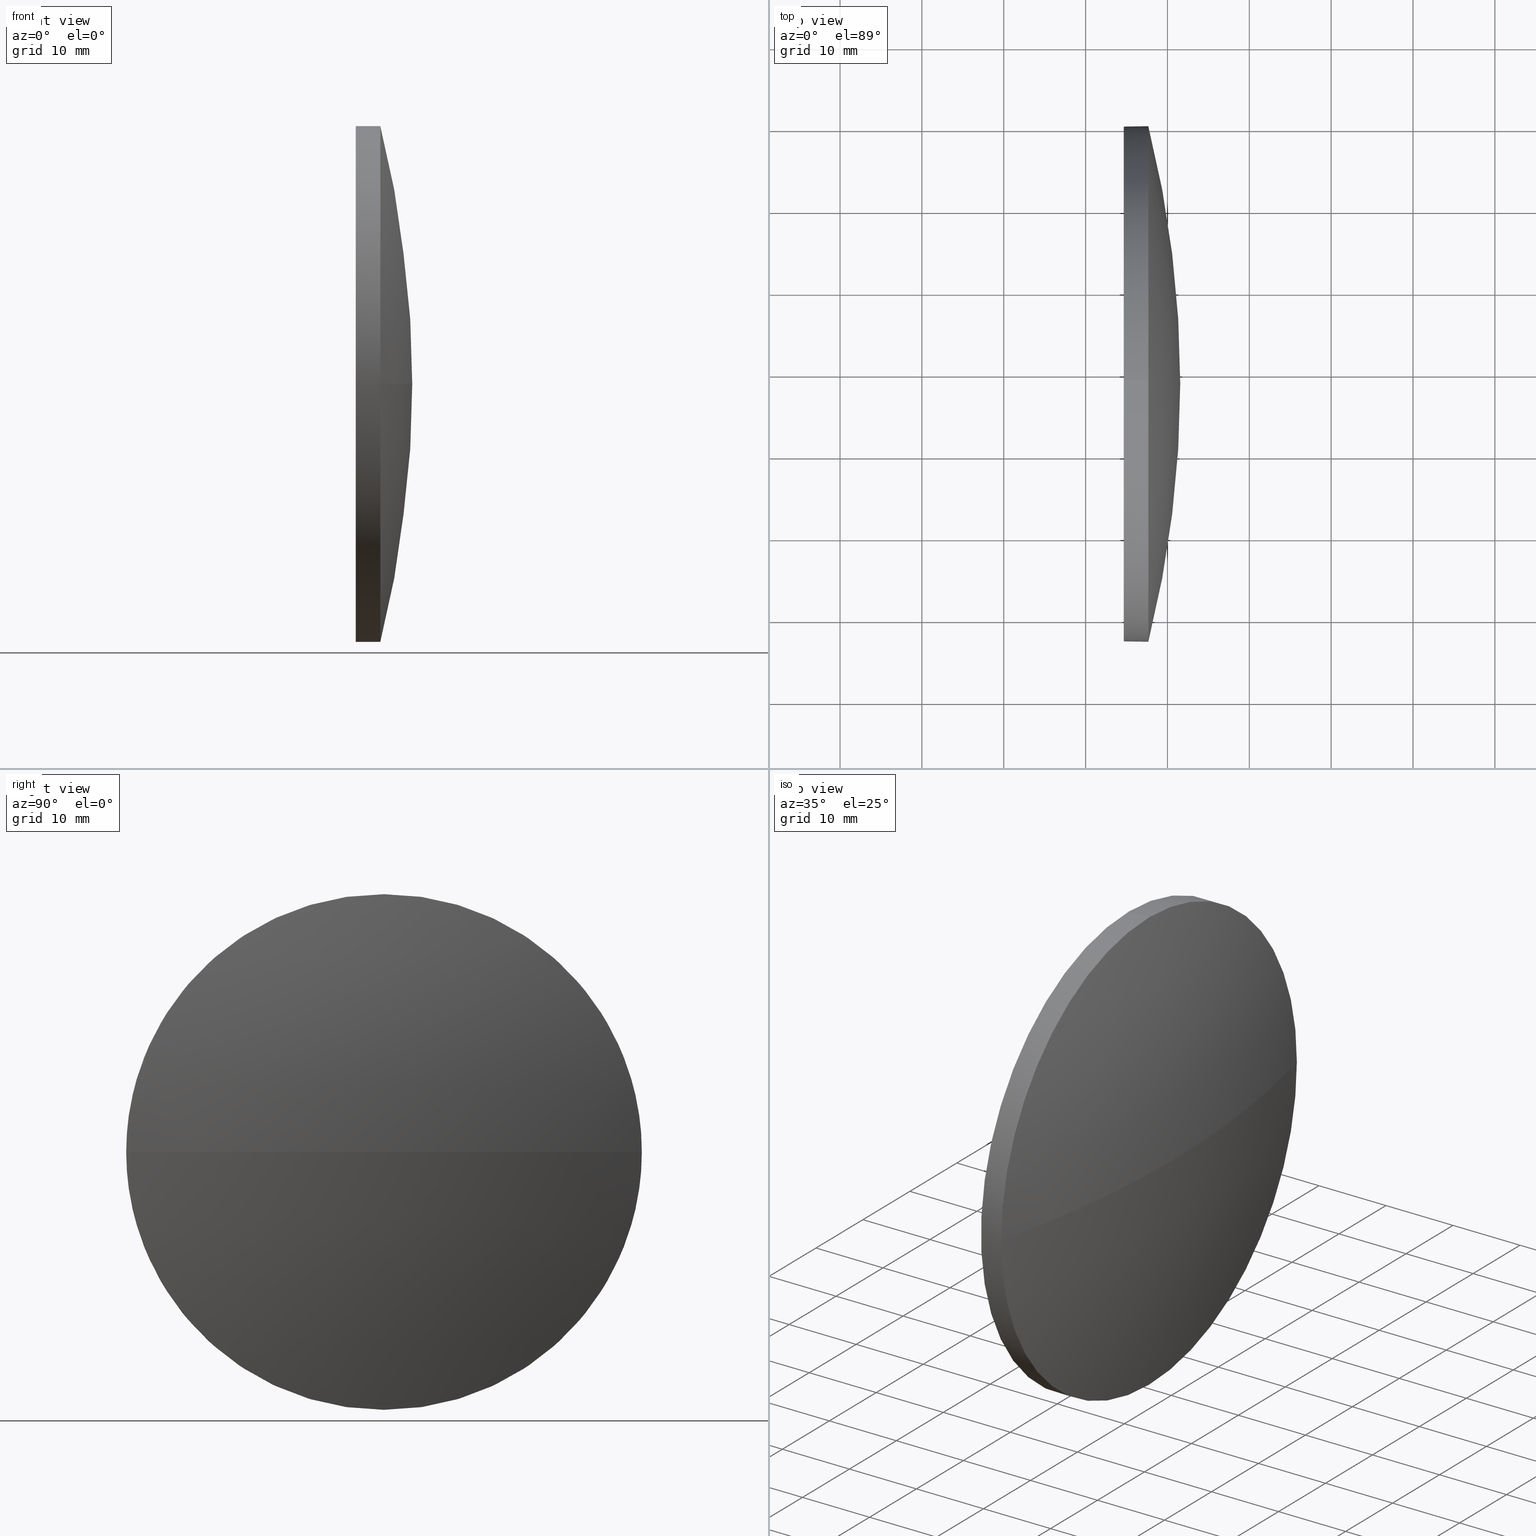
[diagram: canonical four-view strip — front | top / right | iso, engineering-drawing reading convention]
A machine part, canonical four-view strip (front | top / right | iso — engineering-drawing reading convention). The complete STEP part file that produces these views, byte-faithful:
ISO-10303-21;
HEADER;
FILE_DESCRIPTION (( 'STEP AP214' ),
    '1' );
FILE_NAME ('100075.STEP',
    '2019-05-06T04:04:16',
    ( '' ),
    ( '' ),
    'SwSTEP 2.0',
    'SolidWorks 2016',
    '' );
FILE_SCHEMA (( 'AUTOMOTIVE_DESIGN' ));
ENDSEC;

DATA;
#1 = CYLINDRICAL_SURFACE ( 'NONE', #87, 31.50000000000000700 ) ;
#2 = CARTESIAN_POINT ( 'NONE',  ( 384.6625470284427600, 48.58872453449601600, -31.50000000000000700 ) ) ;
#3 = VERTEX_POINT ( 'NONE', #52 ) ;
#4 = DIRECTION ( 'NONE',  ( 0.0000000000000000000, 0.0000000000000000000, 1.000000000000000000 ) ) ;
#5 = CARTESIAN_POINT ( 'NONE',  ( 262.4010085669045800, 48.58872453449594500, 0.0000000000000000000 ) ) ;
#6 = ORIENTED_EDGE ( 'NONE', *, *, #19, .F. ) ;
#7 = APPLICATION_PROTOCOL_DEFINITION ( 'draft international standard', 'automotive_design', 1998, #31 ) ;
#8 = AXIS2_PLACEMENT_3D ( 'NONE', #103, #106, #4 ) ;
#9 = ORIENTED_EDGE ( 'NONE', *, *, #67, .T. ) ;
#10 = DIRECTION ( 'NONE',  ( -1.000000000000000000, -0.0000000000000000000, -0.0000000000000000000 ) ) ;
#11 = DIRECTION ( 'NONE',  ( 0.0000000000000000000, 0.0000000000000000000, 1.000000000000000000 ) ) ;
#12 = CARTESIAN_POINT ( 'NONE',  ( 384.6625470284427600, 48.58872453449600900, 0.0000000000000000000 ) ) ;
#13 = ORIENTED_EDGE ( 'NONE', *, *, #72, .F. ) ;
#14 = CARTESIAN_POINT ( 'NONE',  ( 262.4010085669045800, 48.58872453449594500, 0.0000000000000000000 ) ) ;
#15 = DIRECTION ( 'NONE',  ( -1.000000000000000000, -0.0000000000000000000, -0.0000000000000000000 ) ) ;
#16 = DIRECTION ( 'NONE',  ( 0.0000000000000000000, 1.000000000000000000, 0.0000000000000000000 ) ) ;
#17 = CIRCLE ( 'NONE', #159, 31.50000000000000700 ) ;
#18 = DIRECTION ( 'NONE',  ( 1.000000000000000000, 0.0000000000000000000, 0.0000000000000000000 ) ) ;
#19 = EDGE_CURVE ( 'NONE', #33, #3, #97, .T. ) ;
#20 = ORIENTED_EDGE ( 'NONE', *, *, #34, .F. ) ;
#21 = VECTOR ( 'NONE', #176, 1000.000000000000000 ) ;
#22 = CARTESIAN_POINT ( 'NONE',  ( 391.5625470284427400, 48.58872453449595200, 0.0000000000000000000 ) ) ;
#23 = SHAPE_DEFINITION_REPRESENTATION ( #84, #139 ) ;
#24 =( NAMED_UNIT ( * ) SI_UNIT ( $, .STERADIAN. ) SOLID_ANGLE_UNIT ( ) );
#25 = CARTESIAN_POINT ( 'NONE',  ( 384.6625470284427600, 48.58872453449600900, 31.50000000000000700 ) ) ;
#26 = DIRECTION ( 'NONE',  ( 0.0000000000000000000, 0.0000000000000000000, 1.000000000000000000 ) ) ;
#27 = EDGE_LOOP ( 'NONE', ( #153, #9, #68, #20 ) ) ;
#28 =( NAMED_UNIT ( * ) PLANE_ANGLE_UNIT ( ) SI_UNIT ( $, .RADIAN. ) );
#29 = PRODUCT_RELATED_PRODUCT_CATEGORY ( 'part', '', ( #127 ) ) ;
#30 = EDGE_LOOP ( 'NONE', ( #55, #43, #109, #39, #66 ) ) ;
#31 = APPLICATION_CONTEXT ( 'automotive_design' ) ;
#32 = PRODUCT_DEFINITION_CONTEXT ( 'detailed design', #31, 'design' ) ;
#33 = VERTEX_POINT ( 'NONE', #163 ) ;
#34 = EDGE_CURVE ( 'NONE', #79, #95, #125, .T. ) ;
#35 = SURFACE_STYLE_FILL_AREA ( #104 ) ;
#36 = ORIENTED_EDGE ( 'NONE', *, *, #67, .F. ) ;
#37 = SPHERICAL_SURFACE ( 'NONE', #94, 129.1615384615381900 ) ;
#38 = CARTESIAN_POINT ( 'NONE',  ( 387.6625470284427600, 17.08872453449603100, -3.857637417314152400E-015 ) ) ;
#39 = ORIENTED_EDGE ( 'NONE', *, *, #72, .T. ) ;
#40 = CARTESIAN_POINT ( 'NONE',  ( 387.6625470284427600, 48.58872453449600900, 0.0000000000000000000 ) ) ;
#41 = EDGE_CURVE ( 'NONE', #186, #86, #110, .T. ) ;
#42 = DIRECTION ( 'NONE',  ( 0.0000000000000000000, 0.0000000000000000000, 1.000000000000000000 ) ) ;
#43 = ORIENTED_EDGE ( 'NONE', *, *, #134, .T. ) ;
#44 = CARTESIAN_POINT ( 'NONE',  ( 387.6625470284427600, 48.58872453449600900, 31.50000000000000700 ) ) ;
#45 = CARTESIAN_POINT ( 'NONE',  ( 384.6625470284427600, 48.58872453449600900, 0.0000000000000000000 ) ) ;
#46 = LINE ( 'NONE', #57, #81 ) ;
#47 = DIRECTION ( 'NONE',  ( 0.0000000000000000000, 0.0000000000000000000, 1.000000000000000000 ) ) ;
#48 = EDGE_LOOP ( 'NONE', ( #36, #58, #105, #6 ) ) ;
#49 = PRESENTATION_LAYER_ASSIGNMENT (  '', '', ( #145 ) ) ;
#50 = AXIS2_PLACEMENT_3D ( 'NONE', #45, #150, #74 ) ;
#51 = DIRECTION ( 'NONE',  ( 0.0000000000000000000, 0.0000000000000000000, 1.000000000000000000 ) ) ;
#52 = CARTESIAN_POINT ( 'NONE',  ( 387.6625470284427600, 48.58872453449601600, -31.50000000000000700 ) ) ;
#53 = UNCERTAINTY_MEASURE_WITH_UNIT (LENGTH_MEASURE( 1.000000000000000100E-005 ), #132, 'distance_accuracy_value', 'NONE');
#54 = DIRECTION ( 'NONE',  ( 0.0000000000000000000, 1.000000000000000000, 1.224646799147353200E-016 ) ) ;
#55 = ORIENTED_EDGE ( 'NONE', *, *, #148, .F. ) ;
#56 = DIRECTION ( 'NONE',  ( 0.0000000000000000000, 0.0000000000000000000, 1.000000000000000000 ) ) ;
#57 = CARTESIAN_POINT ( 'NONE',  ( 365.6235919666203200, 48.58872453449601600, -31.50000000000000700 ) ) ;
#58 = ORIENTED_EDGE ( 'NONE', *, *, #62, .T. ) ;
#59 = DIRECTION ( 'NONE',  ( -1.000000000000000000, -0.0000000000000000000, -0.0000000000000000000 ) ) ;
#60 = AXIS2_PLACEMENT_3D ( 'NONE', #115, #47, #18 ) ;
#61 = EDGE_LOOP ( 'NONE', ( #101, #78, #136, #13, #170 ) ) ;
#62 = EDGE_CURVE ( 'NONE', #70, #79, #76, .T. ) ;
#63 = LINE ( 'NONE', #71, #21 ) ;
#64 = AXIS2_PLACEMENT_3D ( 'NONE', #98, #144, #123 ) ;
#65 = PRESENTATION_STYLE_ASSIGNMENT (( #117 ) ) ;
#66 = ORIENTED_EDGE ( 'NONE', *, *, #158, .F. ) ;
#67 = EDGE_CURVE ( 'NONE', #70, #33, #161, .T. ) ;
#68 = ORIENTED_EDGE ( 'NONE', *, *, #137, .F. ) ;
#69 =( GEOMETRIC_REPRESENTATION_CONTEXT ( 3 ) GLOBAL_UNCERTAINTY_ASSIGNED_CONTEXT ( ( #82 ) ) GLOBAL_UNIT_ASSIGNED_CONTEXT ( ( #180, #28, #131 ) ) REPRESENTATION_CONTEXT ( 'NONE', 'WORKASPACE' ) );
#70 = VERTEX_POINT ( 'NONE', #22 ) ;
#71 = CARTESIAN_POINT ( 'NONE',  ( 365.6235919666203200, 48.58872453449600900, 31.50000000000000700 ) ) ;
#72 = EDGE_CURVE ( 'NONE', #95, #186, #63, .T. ) ;
#73 = APPLICATION_PROTOCOL_DEFINITION ( 'draft international standard', 'automotive_design', 1998, #151 ) ;
#74 = DIRECTION ( 'NONE',  ( 0.0000000000000000000, 0.0000000000000000000, -1.000000000000000000 ) ) ;
#75 = CARTESIAN_POINT ( 'NONE',  ( 384.6625470284427600, 48.58872453449600900, 0.0000000000000000000 ) ) ;
#76 = CIRCLE ( 'NONE', #171, 129.1615384615381900 ) ;
#77 = DIRECTION ( 'NONE',  ( 0.0000000000000000000, 0.0000000000000000000, 1.000000000000000000 ) ) ;
#78 = ORIENTED_EDGE ( 'NONE', *, *, #148, .T. ) ;
#79 = VERTEX_POINT ( 'NONE', #38 ) ;
#80 = AXIS2_PLACEMENT_3D ( 'NONE', #175, #99, #182 ) ;
#81 = VECTOR ( 'NONE', #177, 1000.000000000000000 ) ;
#82 = UNCERTAINTY_MEASURE_WITH_UNIT (LENGTH_MEASURE( 1.000000000000000100E-005 ), #180, 'distance_accuracy_value', 'NONE');
#83 = AXIS2_PLACEMENT_3D ( 'NONE', #12, #162, #11 ) ;
#84 = PRODUCT_DEFINITION_SHAPE ( 'NONE', 'NONE',  #100 ) ;
#85 = SURFACE_SIDE_STYLE ('',( #172 ) ) ;
#86 = VERTEX_POINT ( 'NONE', #2 ) ;
#87 = AXIS2_PLACEMENT_3D ( 'NONE', #128, #59, #56 ) ;
#88 = DIRECTION ( 'NONE',  ( -0.0000000000000000000, 0.0000000000000000000, -1.000000000000000000 ) ) ;
#89 = FILL_AREA_STYLE ('',( #126 ) ) ;
#90 = CYLINDRICAL_SURFACE ( 'NONE', #8, 31.50000000000000700 ) ;
#91 = MECHANICAL_DESIGN_GEOMETRIC_PRESENTATION_REPRESENTATION (  '', ( #142 ), #169 ) ;
#92 = PRODUCT_CONTEXT ( 'NONE', #151, 'mechanical' ) ;
#93 = ADVANCED_FACE ( 'NONE', ( #141 ), #1, .T. ) ;
#94 = AXIS2_PLACEMENT_3D ( 'NONE', #14, #167, #178 ) ;
#95 = VERTEX_POINT ( 'NONE', #44 ) ;
#96 = MECHANICAL_DESIGN_GEOMETRIC_PRESENTATION_REPRESENTATION (  '', ( #145 ), #143 ) ;
#97 = CIRCLE ( 'NONE', #64, 31.50000000000000700 ) ;
#98 = CARTESIAN_POINT ( 'NONE',  ( 387.6625470284427600, 48.58872453449600900, 0.0000000000000000000 ) ) ;
#99 = DIRECTION ( 'NONE',  ( -0.0000000000000000000, 0.0000000000000000000, 1.000000000000000000 ) ) ;
#100 = PRODUCT_DEFINITION ( 'δ֪', '', #154, #32 ) ;
#101 = ORIENTED_EDGE ( 'NONE', *, *, #19, .T. ) ;
#102 = MANIFOLD_SOLID_BREP ( '��ת1', #112 ) ;
#103 = CARTESIAN_POINT ( 'NONE',  ( 365.6235919666203200, 48.58872453449600900, 0.0000000000000000000 ) ) ;
#104 = FILL_AREA_STYLE ('',( #107 ) ) ;
#105 = ORIENTED_EDGE ( 'NONE', *, *, #134, .F. ) ;
#106 = DIRECTION ( 'NONE',  ( -1.000000000000000000, -0.0000000000000000000, -0.0000000000000000000 ) ) ;
#107 = FILL_AREA_STYLE_COLOUR ( '', #114 ) ;
#108 = ADVANCED_FACE ( 'NONE', ( #138 ), #90, .T. ) ;
#109 = ORIENTED_EDGE ( 'NONE', *, *, #34, .T. ) ;
#110 = CIRCLE ( 'NONE', #83, 31.50000000000000700 ) ;
#111 = DIRECTION ( 'NONE',  ( 0.0000000000000000000, 1.224646799147353200E-016, -1.000000000000000000 ) ) ;
#112 = CLOSED_SHELL ( 'NONE', ( #93, #173, #155, #108, #140 ) ) ;
#113 = CARTESIAN_POINT ( 'NONE',  ( 387.6625470284427600, 48.58872453449600900, 0.0000000000000000000 ) ) ;
#114 = COLOUR_RGB ( '',1.000000000000000000, 1.000000000000000000, 1.000000000000000000 ) ;
#115 = CARTESIAN_POINT ( 'NONE',  ( 0.0000000000000000000, 0.0000000000000000000, 0.0000000000000000000 ) ) ;
#116 = AXIS2_PLACEMENT_3D ( 'NONE', #118, #164, #42 ) ;
#117 = SURFACE_STYLE_USAGE ( .BOTH. , #85 ) ;
#118 = CARTESIAN_POINT ( 'NONE',  ( 387.6625470284427600, 48.58872453449600900, 0.0000000000000000000 ) ) ;
#119 = FACE_OUTER_BOUND ( 'NONE', #27, .T. ) ;
#120 = AXIS2_PLACEMENT_3D ( 'NONE', #5, #88, #16 ) ;
#121 = AXIS2_PLACEMENT_3D ( 'NONE', #40, #10, #51 ) ;
#122 = CIRCLE ( 'NONE', #179, 31.50000000000000700 ) ;
#123 = DIRECTION ( 'NONE',  ( 0.0000000000000000000, 0.0000000000000000000, 1.000000000000000000 ) ) ;
#124 =( LENGTH_UNIT ( ) NAMED_UNIT ( * ) SI_UNIT ( .MILLI., .METRE. ) );
#125 = CIRCLE ( 'NONE', #121, 31.50000000000000700 ) ;
#126 = FILL_AREA_STYLE_COLOUR ( '', #181 ) ;
#127 = PRODUCT ( '100075', '100075', '', ( #92 ) ) ;
#128 = CARTESIAN_POINT ( 'NONE',  ( 365.6235919666203200, 48.58872453449600900, 0.0000000000000000000 ) ) ;
#129 = DIRECTION ( 'NONE',  ( -1.000000000000000000, -0.0000000000000000000, -0.0000000000000000000 ) ) ;
#130 = PRESENTATION_LAYER_ASSIGNMENT (  '', '', ( #142 ) ) ;
#131 =( NAMED_UNIT ( * ) SI_UNIT ( $, .STERADIAN. ) SOLID_ANGLE_UNIT ( ) );
#132 =( LENGTH_UNIT ( ) NAMED_UNIT ( * ) SI_UNIT ( .MILLI., .METRE. ) );
#133 = SURFACE_SIDE_STYLE ('',( #35 ) ) ;
#134 = EDGE_CURVE ( 'NONE', #3, #79, #185, .T. ) ;
#135 =( NAMED_UNIT ( * ) PLANE_ANGLE_UNIT ( ) SI_UNIT ( $, .RADIAN. ) );
#136 = ORIENTED_EDGE ( 'NONE', *, *, #41, .F. ) ;
#137 = EDGE_CURVE ( 'NONE', #95, #33, #122, .T. ) ;
#138 = FACE_OUTER_BOUND ( 'NONE', #30, .T. ) ;
#139 = ADVANCED_BREP_SHAPE_REPRESENTATION ( '100075', ( #102, #60 ), #69 ) ;
#140 = ADVANCED_FACE ( 'NONE', ( #174 ), #165, .F. ) ;
#141 = FACE_OUTER_BOUND ( 'NONE', #61, .T. ) ;
#142 = STYLED_ITEM ( 'NONE', ( #156 ), #139 ) ;
#143 =( GEOMETRIC_REPRESENTATION_CONTEXT ( 3 ) GLOBAL_UNCERTAINTY_ASSIGNED_CONTEXT ( ( #149 ) ) GLOBAL_UNIT_ASSIGNED_CONTEXT ( ( #124, #147, #24 ) ) REPRESENTATION_CONTEXT ( 'NONE', 'WORKASPACE' ) );
#144 = DIRECTION ( 'NONE',  ( -1.000000000000000000, -0.0000000000000000000, -0.0000000000000000000 ) ) ;
#145 = STYLED_ITEM ( 'NONE', ( #65 ), #102 ) ;
#146 = CARTESIAN_POINT ( 'NONE',  ( 262.4010085669045800, 48.58872453449594500, 0.0000000000000000000 ) ) ;
#147 =( NAMED_UNIT ( * ) PLANE_ANGLE_UNIT ( ) SI_UNIT ( $, .RADIAN. ) );
#148 = EDGE_CURVE ( 'NONE', #3, #86, #46, .T. ) ;
#149 = UNCERTAINTY_MEASURE_WITH_UNIT (LENGTH_MEASURE( 1.000000000000000100E-005 ), #124, 'distance_accuracy_value', 'NONE');
#150 = DIRECTION ( 'NONE',  ( 1.000000000000000000, 0.0000000000000000000, 0.0000000000000000000 ) ) ;
#151 = APPLICATION_CONTEXT ( 'automotive_design' ) ;
#152 = SPHERICAL_SURFACE ( 'NONE', #120, 129.1615384615381900 ) ;
#153 = ORIENTED_EDGE ( 'NONE', *, *, #62, .F. ) ;
#154 = PRODUCT_DEFINITION_FORMATION_WITH_SPECIFIED_SOURCE ( '�κ�', '', #127, .NOT_KNOWN. ) ;
#155 = ADVANCED_FACE ( 'NONE', ( #119 ), #152, .T. ) ;
#156 = PRESENTATION_STYLE_ASSIGNMENT (( #168 ) ) ;
#157 = EDGE_LOOP ( 'NONE', ( #166, #183 ) ) ;
#158 = EDGE_CURVE ( 'NONE', #86, #186, #17, .T. ) ;
#159 = AXIS2_PLACEMENT_3D ( 'NONE', #75, #15, #77 ) ;
#160 = FACE_OUTER_BOUND ( 'NONE', #48, .T. ) ;
#161 = CIRCLE ( 'NONE', #80, 129.1615384615381600 ) ;
#162 = DIRECTION ( 'NONE',  ( -1.000000000000000000, -0.0000000000000000000, -0.0000000000000000000 ) ) ;
#163 = CARTESIAN_POINT ( 'NONE',  ( 387.6625470284427600, 80.08872453449592400, 0.0000000000000000000 ) ) ;
#164 = DIRECTION ( 'NONE',  ( -1.000000000000000000, -0.0000000000000000000, -0.0000000000000000000 ) ) ;
#165 = PLANE ( 'NONE',  #50 ) ;
#166 = ORIENTED_EDGE ( 'NONE', *, *, #41, .T. ) ;
#167 = DIRECTION ( 'NONE',  ( -0.0000000000000000000, 0.0000000000000000000, -1.000000000000000000 ) ) ;
#168 = SURFACE_STYLE_USAGE ( .BOTH. , #133 ) ;
#169 =( GEOMETRIC_REPRESENTATION_CONTEXT ( 3 ) GLOBAL_UNCERTAINTY_ASSIGNED_CONTEXT ( ( #53 ) ) GLOBAL_UNIT_ASSIGNED_CONTEXT ( ( #132, #135, #184 ) ) REPRESENTATION_CONTEXT ( 'NONE', 'WORKASPACE' ) );
#170 = ORIENTED_EDGE ( 'NONE', *, *, #137, .T. ) ;
#171 = AXIS2_PLACEMENT_3D ( 'NONE', #146, #111, #54 ) ;
#172 = SURFACE_STYLE_FILL_AREA ( #89 ) ;
#173 = ADVANCED_FACE ( 'NONE', ( #160 ), #37, .T. ) ;
#174 = FACE_OUTER_BOUND ( 'NONE', #157, .T. ) ;
#175 = CARTESIAN_POINT ( 'NONE',  ( 262.4010085669045800, 48.58872453449594500, 0.0000000000000000000 ) ) ;
#176 = DIRECTION ( 'NONE',  ( -1.000000000000000000, -0.0000000000000000000, -0.0000000000000000000 ) ) ;
#177 = DIRECTION ( 'NONE',  ( -1.000000000000000000, -0.0000000000000000000, -0.0000000000000000000 ) ) ;
#178 = DIRECTION ( 'NONE',  ( 0.0000000000000000000, 1.000000000000000000, 0.0000000000000000000 ) ) ;
#179 = AXIS2_PLACEMENT_3D ( 'NONE', #113, #129, #26 ) ;
#180 =( LENGTH_UNIT ( ) NAMED_UNIT ( * ) SI_UNIT ( .MILLI., .METRE. ) );
#181 = COLOUR_RGB ( '',1.000000000000000000, 1.000000000000000000, 1.000000000000000000 ) ;
#182 = DIRECTION ( 'NONE',  ( 1.000000000000000000, 0.0000000000000000000, 0.0000000000000000000 ) ) ;
#183 = ORIENTED_EDGE ( 'NONE', *, *, #158, .T. ) ;
#184 =( NAMED_UNIT ( * ) SI_UNIT ( $, .STERADIAN. ) SOLID_ANGLE_UNIT ( ) );
#185 = CIRCLE ( 'NONE', #116, 31.50000000000000700 ) ;
#186 = VERTEX_POINT ( 'NONE', #25 ) ;
ENDSEC;
END-ISO-10303-21;
